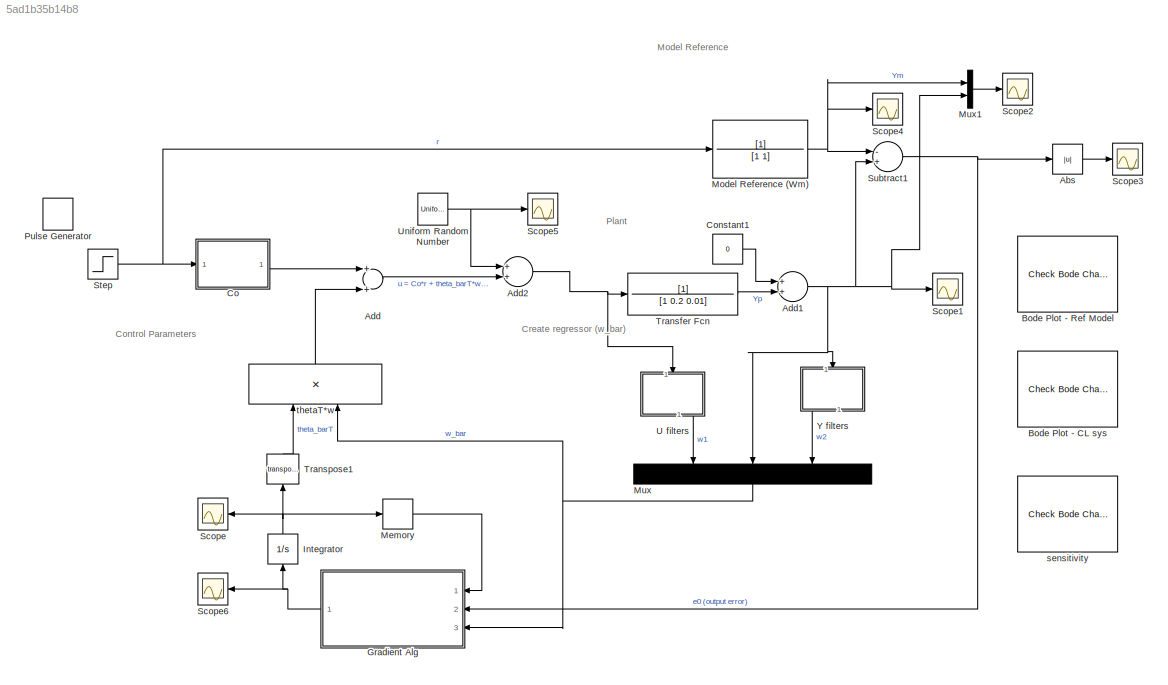
MODEL slx_5ad1b35b14b8
KIND model
CONFIG AbsTol = auto
CONFIG EnableMultiTasking = off
CONFIG FixedStep = auto
CONFIG MaxStep = auto
CONFIG MinStep = auto
CONFIG RelTol = 1e-3
CONFIG SampleTimeConstraint = Unconstrained
CONFIG Solver = VariableStepAuto
CONFIG SolverName = VariableStepAuto
CONFIG StartTime = 0.0
CONFIG StopTime = 1000
BLOCK [Abs] Abs
  SaturateOnIntegerOverflow = off
BLOCK [Sum] Add
  InputSameDT = off
  OutDataTypeStr = Inherit: Inherit via internal rule
  Ports = [2, 1]
  SaturateOnIntegerOverflow = off
BLOCK [Sum] Add1
  InputSameDT = off
  OutDataTypeStr = Inherit: Inherit via internal rule
  Ports = [2, 1]
  SaturateOnIntegerOverflow = off
BLOCK [Sum] Add2
  InputSameDT = off
  OutDataTypeStr = Inherit: Inherit via internal rule
  Ports = [2, 1]
  SaturateOnIntegerOverflow = off
BLOCK [Reference] Bode Plot - CL sys  REF=slctrlblks/Model Verification/Check Bode 
Characteristics
  InstantiateOnLoad = on
  Ports = []
  SourceBlock = slctrlblks/Model Verification/Check Bode \nCharacteristics
  SourceProductBaseCode = SD
  SourceProductName = Simulink Control Design
  SourceType = Checks_Bode
BLOCK [Reference] Bode Plot - Ref Model  REF=slctrlblks/Model Verification/Check Bode 
Characteristics
  InstantiateOnLoad = on
  Ports = []
  SourceBlock = slctrlblks/Model Verification/Check Bode \nCharacteristics
  SourceProductBaseCode = SD
  SourceProductName = Simulink Control Design
  SourceType = Checks_Bode
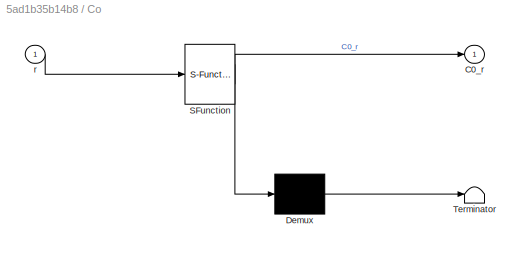
BLOCK [SubSystem] Co
  ErrorFcn = Stateflow.Translate.translate
  PermitHierarchicalResolution = ExplicitOnly
  Ports = [1, 1]
  RequestExecContextInheritance = off
  SFBlockType = MATLAB Function
  TreatAsAtomicUnit = on
BLOCK [Demux] Co/ Demux 
  Outputs = 1
  Ports = [1, 1]
BLOCK [S-Function] Co/ SFunction 
  EnableBusSupport = on
  FunctionName = sf_sfun
  PortCounts = [1 2]
  Ports = [1, 2]
  SFcnIsStateOwnerBlock = off
  SFunctionDeploymentMode = off
  Tag = Stateflow S-Function MRAC_P1_sigmamod 10
BLOCK [Terminator] Co/ Terminator 
BLOCK [Outport] Co/C0_r
  IconDisplay = Port number
BLOCK [Inport] Co/r
  IconDisplay = Port number
BLOCK [Constant] Constant1
  Value = 0
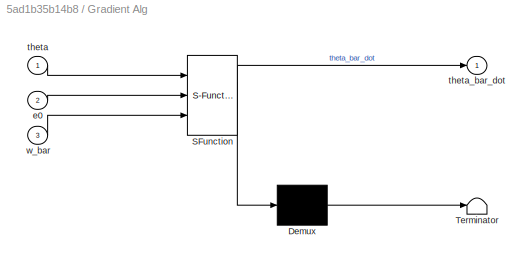
BLOCK [SubSystem] Gradient Alg
  ErrorFcn = Stateflow.Translate.translate
  PermitHierarchicalResolution = ExplicitOnly
  Ports = [3, 1]
  RequestExecContextInheritance = off
  SFBlockType = MATLAB Function
  TreatAsAtomicUnit = on
BLOCK [Demux] Gradient Alg/ Demux 
  Outputs = 1
  Ports = [1, 1]
BLOCK [S-Function] Gradient Alg/ SFunction 
  EnableBusSupport = on
  FunctionName = sf_sfun
  PortCounts = [3 2]
  Ports = [3, 2]
  SFcnIsStateOwnerBlock = off
  SFunctionDeploymentMode = off
  Tag = Stateflow S-Function MRAC_P1_sigmamod 3
BLOCK [Terminator] Gradient Alg/ Terminator 
BLOCK [Inport] Gradient Alg/e0
  IconDisplay = Port number
  Port = 2
BLOCK [Inport] Gradient Alg/theta
  IconDisplay = Port number
BLOCK [Outport] Gradient Alg/theta_bar_dot
  IconDisplay = Port number
BLOCK [Inport] Gradient Alg/w_bar
  IconDisplay = Port number
  Port = 3
BLOCK [Integrator] Integrator
  Ports = [1, 1]
BLOCK [Memory] Memory
BLOCK [TransferFcn] Model Reference (Wm)
  Denominator = [1 1]
BLOCK [Mux] Mux
  DisplayOption = signals
  Inputs = 3
  Ports = [3, 1]
BLOCK [Mux] Mux1
  DisplayOption = bar
  Inputs = 2
  Ports = [2, 1]
BLOCK [DiscretePulseGenerator] Pulse Generator
  Period = 1000
  Ports = [0, 1]
  PulseType = Time based
  PulseWidth = 25
BLOCK [Scope] Scope
  Floating = off
  NumInputPorts = 1
  Ports = [1]
  ScopeSpecificationString = Simulink.scopes.TimeScopeBlockCfg('CurrentConfiguration', extmgr.ConfigurationSet(extmgr.Configuration('Core','General UI',true),extmgr.Configuration('Core','Source UI',true),extmgr.Configuration('Sources','WiredSimulink',true,'DataLoggingVariableName','ScopeData1'),extmgr.Configuration('Visuals','Time Domain',true,'SerializedDisplays',{struct('MinYLimReal','-2.58475','MaxYLimReal','0.32829','YLab...<+1590ch>
BLOCK [Scope] Scope1
  Floating = off
  NumInputPorts = 1
  Ports = [1]
  ScopeSpecificationString = Simulink.scopes.TimeScopeBlockCfg('CurrentConfiguration', extmgr.ConfigurationSet(extmgr.Configuration('Core','General UI',true),extmgr.Configuration('Core','Source UI',true),extmgr.Configuration('Sources','WiredSimulink',true,'DataLoggingVariableName','ScopeData3'),extmgr.Configuration('Visuals','Time Domain',true,'SerializedDisplays',{struct('MinYLimReal','-3.03333','MaxYLimReal','4.91645','YLab...<+1435ch>
BLOCK [Scope] Scope2
  Floating = off
  NumInputPorts = 1
  Ports = [1]
  ScopeSpecificationString = Simulink.scopes.TimeScopeBlockCfg('CurrentConfiguration', extmgr.ConfigurationSet(extmgr.Configuration('Core','General UI',true),extmgr.Configuration('Core','Source UI',true),extmgr.Configuration('Sources','WiredSimulink',true,'DataLoggingVariableName','ScopeData1'),extmgr.Configuration('Visuals','Time Domain',true,'SerializedDisplays',{struct('MinYLimReal','-3.04899','MaxYLimReal','4.92726','YLab...<+1396ch>
BLOCK [Scope] Scope3
  Floating = off
  NumInputPorts = 1
  Ports = [1]
  ScopeSpecificationString = Simulink.scopes.TimeScopeBlockCfg('CurrentConfiguration', extmgr.ConfigurationSet(extmgr.Configuration('Core','General UI',true),extmgr.Configuration('Core','Source UI',true),extmgr.Configuration('Sources','WiredSimulink',true),extmgr.Configuration('Visuals','Time Domain',true,'SerializedDisplays',{struct('MinYLimReal','-0.4053','MaxYLimReal','3.6477','YLabelReal','','MinYLimMag','0.00000','MaxYLi...<+1388ch>
BLOCK [Scope] Scope4
  Floating = off
  NumInputPorts = 1
  Ports = [1]
  ScopeSpecificationString = Simulink.scopes.TimeScopeBlockCfg('CurrentConfiguration', extmgr.ConfigurationSet(extmgr.Configuration('Core','General UI',true),extmgr.Configuration('Core','Source UI',true),extmgr.Configuration('Sources','WiredSimulink',true,'DataLoggingVariableName','ScopeData5'),extmgr.Configuration('Visuals','Time Domain',true,'SerializedDisplays',{struct('MinYLimReal','-0.125','MaxYLimReal','1.125','YLabelRe...<+1379ch>
BLOCK [Scope] Scope5
  Floating = off
  NumInputPorts = 1
  Ports = [1]
  ScopeSpecificationString = Simulink.scopes.TimeScopeBlockCfg('CurrentConfiguration', extmgr.ConfigurationSet(extmgr.Configuration('Core','General UI',true),extmgr.Configuration('Core','Source UI',true),extmgr.Configuration('Sources','WiredSimulink',true,'DataLoggingVariableName','ScopeData1'),extmgr.Configuration('Visuals','Time Domain',true,'SerializedDisplays',{struct('MinYLimReal','-0.125','MaxYLimReal','0.125','YLabelRe...<+1395ch>
BLOCK [Scope] Scope6
  Floating = off
  NumInputPorts = 1
  Ports = [1]
  ScopeSpecificationString = Simulink.scopes.TimeScopeBlockCfg('CurrentConfiguration', extmgr.ConfigurationSet(extmgr.Configuration('Core','General UI',true),extmgr.Configuration('Core','Source UI',true),extmgr.Configuration('Sources','WiredSimulink',true,'DataLoggingVariableName','ScopeData2'),extmgr.Configuration('Visuals','Time Domain',true,'SerializedDisplays',{struct('MinYLimReal','-0.01766','MaxYLimReal','0.01939','YLab...<+1485ch>
BLOCK [Step] Step
  SampleTime = 0
  Time = 0
BLOCK [Sum] Subtract1
  InputSameDT = off
  Inputs = -+
  OutDataTypeStr = Inherit: Inherit via internal rule
  Ports = [2, 1]
  SaturateOnIntegerOverflow = off
BLOCK [TransferFcn] Transfer Fcn
  Denominator = [1 0.2 0.01]
BLOCK [Math] Transpose1
  Operator = transpose
  Ports = [1, 1]
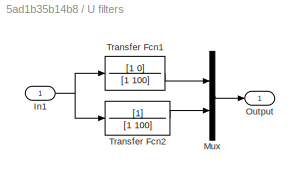
BLOCK [SubSystem] U filters
  Ports = [1, 1]
  RequestExecContextInheritance = off
BLOCK [Inport] U filters/In1
  IconDisplay = Port number
BLOCK [Mux] U filters/Mux
  DisplayOption = bar
  Inputs = 2
  Ports = [2, 1]
BLOCK [Outport] U filters/Output
  IconDisplay = Port number
BLOCK [TransferFcn] U filters/Transfer Fcn1
  Denominator = [1 100]
  Numerator = [1 0]
BLOCK [TransferFcn] U filters/Transfer Fcn2
  Denominator = [1 100]
BLOCK [UniformRandomNumber] Uniform Random Number
  Maximum = 0.1
  Minimum = -0.1
  SampleTime = 0.1
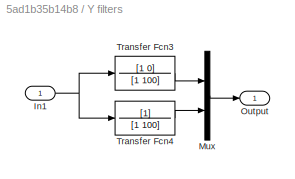
BLOCK [SubSystem] Y filters
  Ports = [1, 1]
  RequestExecContextInheritance = off
BLOCK [Inport] Y filters/In1
  IconDisplay = Port number
BLOCK [Mux] Y filters/Mux
  DisplayOption = bar
  Inputs = 2
  Ports = [2, 1]
BLOCK [Outport] Y filters/Output
  IconDisplay = Port number
BLOCK [TransferFcn] Y filters/Transfer Fcn3
  Denominator = [1 100]
  Numerator = [1 0]
BLOCK [TransferFcn] Y filters/Transfer Fcn4
  Denominator = [1 100]
BLOCK [Reference] sensitivity  REF=slctrlblks/Model Verification/Check Bode 
Characteristics
  InstantiateOnLoad = on
  Ports = []
  SourceBlock = slctrlblks/Model Verification/Check Bode \nCharacteristics
  SourceProductBaseCode = SD
  SourceProductName = Simulink Control Design
  SourceType = Checks_Bode
BLOCK [Product] thetaT*w
  InputSameDT = off
  Multiplication = Matrix(*)
  OutDataTypeStr = Inherit: Inherit via internal rule
  Ports = [2, 1]
  RndMeth = Floor
  SaturateOnIntegerOverflow = off
ANNOTATION (root): Control Parameters
ANNOTATION (root): Create regressor (w_bar)
ANNOTATION (root): Model Reference
ANNOTATION (root): Plant
LINE Abs:1 -> Scope3:1
NET Add1:1 -> Mux1:2, Mux:2, Scope1:1, Subtract1:2, Y filters:1
NET Add2:1 -> Transfer Fcn:1, U filters:1
LINE Add:1 -> Add2:2
LINE Co:1 -> Add:1
LINE Constant1:1 -> Add1:1
NET Gradient Alg:1 -> Integrator:1, Scope6:1
NET Integrator:1 -> Memory:1, Scope:1, Transpose1:1
LINE Memory:1 -> Gradient Alg:1
NET Model Reference (Wm):1 -> Mux1:1, Scope4:1, Subtract1:1
LINE Mux1:1 -> Scope2:1
NET Mux:1 -> Gradient Alg:3, thetaT*w:2
NET Step:1 -> Co:1, Model Reference (Wm):1
NET Subtract1:1 -> Abs:1, Gradient Alg:2
LINE Transfer Fcn:1 -> Add1:2
LINE Transpose1:1 -> thetaT*w:1
NET U filters/In1:1 -> U filters/Transfer Fcn1:1, U filters/Transfer Fcn2:1
LINE U filters/Mux:1 -> U filters/Output:1
LINE U filters/Transfer Fcn1:1 -> U filters/Mux:1
LINE U filters/Transfer Fcn2:1 -> U filters/Mux:2
LINE U filters:1 -> Mux:1
NET Uniform Random Number:1 -> Add2:1, Scope5:1
NET Y filters/In1:1 -> Y filters/Transfer Fcn3:1, Y filters/Transfer Fcn4:1
LINE Y filters/Mux:1 -> Y filters/Output:1
LINE Y filters/Transfer Fcn3:1 -> Y filters/Mux:1
LINE Y filters/Transfer Fcn4:1 -> Y filters/Mux:2
LINE Y filters:1 -> Mux:3
LINE thetaT*w:1 -> Add:2
note: NET lines group one-source signal fan-out (src -> all destinations, sorted); 1:1 wires keep LINE
CHART Gradient Alg states=1 transitions=1
  STATE_LABEL 'eML_blk_kernel()'
  STATE_LABEL "SCRIPT:\nfunction theta_bar_dot = fcn(theta, e0, w_bar)\ng = 0.1; %adaptive gain\nsigma = 0.001;\n% theta_bar is vector of controller parameters of the form of [c', d0, d']\ntheta_bar_dot = -g * e0 * w_bar - sigma*theta;\n\n\n\n"
CHART Co states=1 transitions=1
  STATE_LABEL 'eML_blk_kernel()'
  STATE_LABEL 'SCRIPT:\nfunction C0_r = fcn(r)\nkp = 1;\nkm = 1; \nC0_star = km / kp;\nC0_r = C0_star * r;\n'
